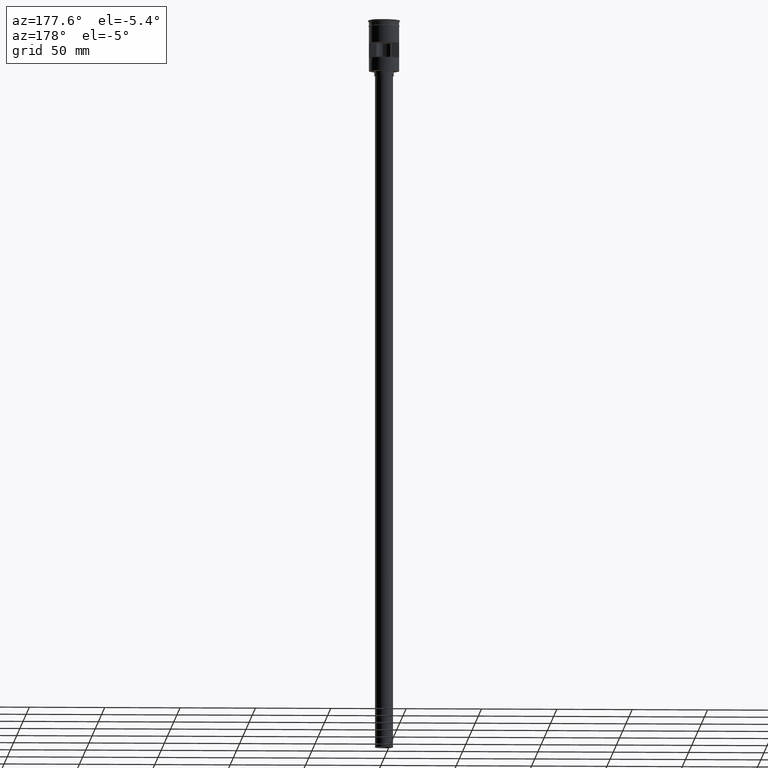
[diagram: clean part render]
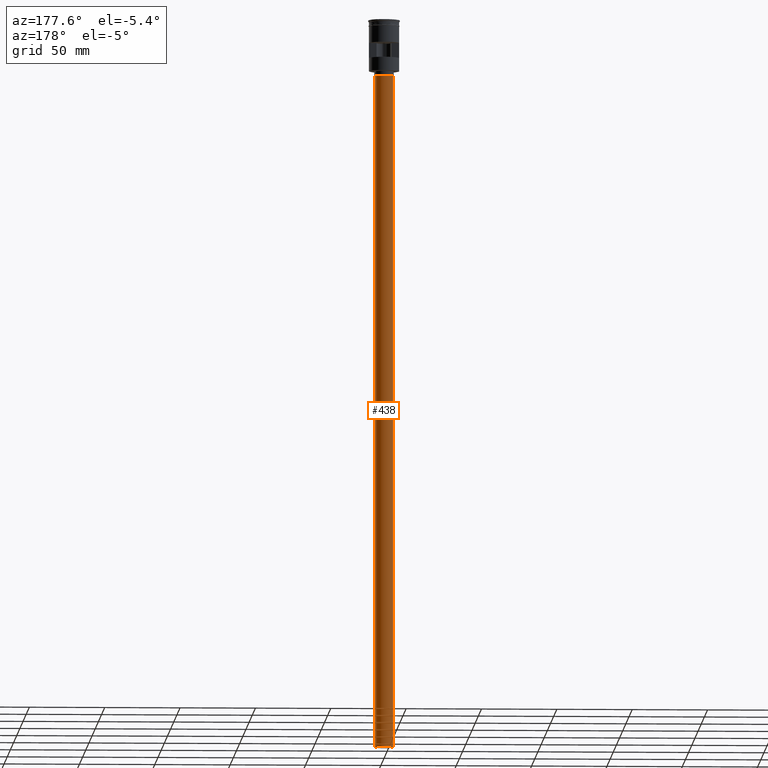
[diagram: same view with one face highlighted and labeled with its STEP entity id]
A machine part, auxiliary view. The second image highlights one B-rep face of the part: STEP entity #438.
In plain terms, the highlighted cylindrical surface (edge-blend (fillet) strip) has radius 6 mm, axis along (-0, -0, 1).
Its self-contained STEP definition (entity closure, byte-faithful):
#54 = ORIENTED_EDGE ( 'NONE', *, *, #603, .F. ) ;
#109 = CARTESIAN_POINT ( 'NONE',  ( 0.000000000000000000, 0.000000000000000000, -484.0000000000000000 ) ) ;
#116 = DIRECTION ( 'NONE',  ( 0.000000000000000000, 0.000000000000000000, -1.000000000000000000 ) ) ;
#277 = CARTESIAN_POINT ( 'NONE',  ( -6.000000000000000888, 7.347880794884120722E-16, -37.00000000000000000 ) ) ;
#352 = CARTESIAN_POINT ( 'NONE',  ( 6.000000000000000888, 0.000000000000000000, -37.00000000000000000 ) ) ;
#357 = VERTEX_POINT ( 'NONE', #633 ) ;
#413 = EDGE_CURVE ( 'NONE', #779, #357, #786, .T. ) ;
#428 = EDGE_CURVE ( 'NONE', #1326, #663, #1198, .T. ) ;
#438 = ADVANCED_FACE ( 'NONE', ( #857 ), #991, .T. ) ;
#489 = DIRECTION ( 'NONE',  ( -0.000000000000000000, -0.000000000000000000, 1.000000000000000000 ) ) ;
#513 = CARTESIAN_POINT ( 'NONE',  ( 0.000000000000000000, 0.000000000000000000, -484.0000000000000000 ) ) ;
#517 = CARTESIAN_POINT ( 'NONE',  ( -6.000000000000000888, 7.347880794884120722E-16, -484.0000000000000000 ) ) ;
#548 = VECTOR ( 'NONE', #1276, 1000.000000000000000 ) ;
#593 = EDGE_LOOP ( 'NONE', ( #1489, #1450, #1166, #54 ) ) ;
#603 = EDGE_CURVE ( 'NONE', #357, #663, #1417, .T. ) ;
#633 = CARTESIAN_POINT ( 'NONE',  ( 6.000000000000000888, 0.000000000000000000, -484.0000000000000000 ) ) ;
#663 = VERTEX_POINT ( 'NONE', #352 ) ;
#733 = AXIS2_PLACEMENT_3D ( 'NONE', #513, #489, #981 ) ;
#779 = VERTEX_POINT ( 'NONE', #517 ) ;
#786 = CIRCLE ( 'NONE', #1256, 6.000000000000000888 ) ;
#848 = EDGE_CURVE ( 'NONE', #779, #1326, #1004, .T. ) ;
#857 = FACE_OUTER_BOUND ( 'NONE', #593, .T. ) ;
#868 = VECTOR ( 'NONE', #1176, 1000.000000000000000 ) ;
#981 = DIRECTION ( 'NONE',  ( 1.000000000000000000, 0.000000000000000000, 0.000000000000000000 ) ) ;
#991 = CYLINDRICAL_SURFACE ( 'NONE', #733, 6.000000000000000888 ) ;
#1004 = LINE ( 'NONE', #1149, #548 ) ;
#1100 = CARTESIAN_POINT ( 'NONE',  ( 0.000000000000000000, 0.000000000000000000, -37.00000000000000000 ) ) ;
#1116 = DIRECTION ( 'NONE',  ( -1.000000000000000000, 0.000000000000000000, 0.000000000000000000 ) ) ;
#1149 = CARTESIAN_POINT ( 'NONE',  ( -6.000000000000000888, 7.347880794884120722E-16, -484.0000000000000000 ) ) ;
#1166 = ORIENTED_EDGE ( 'NONE', *, *, #428, .T. ) ;
#1176 = DIRECTION ( 'NONE',  ( -0.000000000000000000, -0.000000000000000000, 1.000000000000000000 ) ) ;
#1198 = CIRCLE ( 'NONE', #1302, 6.000000000000000888 ) ;
#1236 = DIRECTION ( 'NONE',  ( -1.000000000000000000, 0.000000000000000000, 0.000000000000000000 ) ) ;
#1256 = AXIS2_PLACEMENT_3D ( 'NONE', #109, #116, #1116 ) ;
#1276 = DIRECTION ( 'NONE',  ( -0.000000000000000000, -0.000000000000000000, 1.000000000000000000 ) ) ;
#1301 = CARTESIAN_POINT ( 'NONE',  ( 6.000000000000000888, 0.000000000000000000, -484.0000000000000000 ) ) ;
#1302 = AXIS2_PLACEMENT_3D ( 'NONE', #1100, #1484, #1236 ) ;
#1326 = VERTEX_POINT ( 'NONE', #277 ) ;
#1417 = LINE ( 'NONE', #1301, #868 ) ;
#1450 = ORIENTED_EDGE ( 'NONE', *, *, #848, .T. ) ;
#1484 = DIRECTION ( 'NONE',  ( 0.000000000000000000, 0.000000000000000000, -1.000000000000000000 ) ) ;
#1489 = ORIENTED_EDGE ( 'NONE', *, *, #413, .F. ) ;